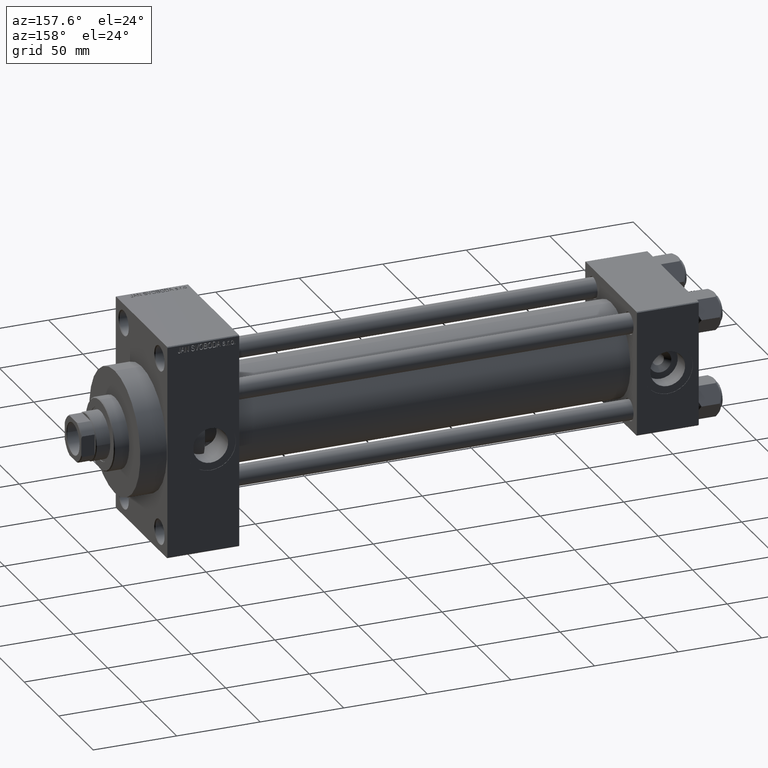
[diagram: clean part render]
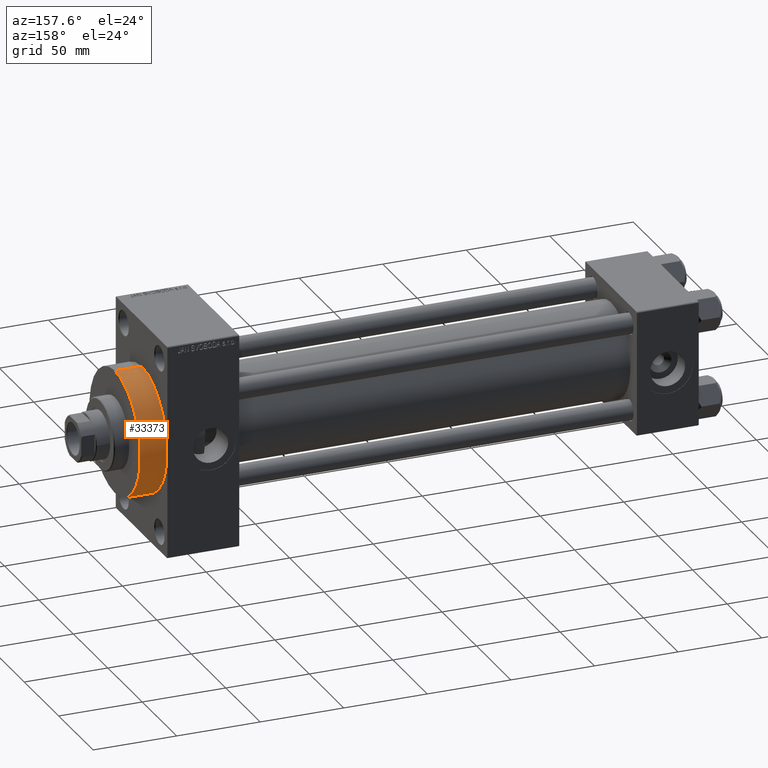
[diagram: same view with one face highlighted and labeled with its STEP entity id]
A machine part, auxiliary view. The second image highlights one B-rep face of the part: STEP entity #33373.
In plain terms, the highlighted cylindrical surface (partial cylindrical patch) has radius 37 mm, axis along (-1, -0, -0).
Its self-contained STEP definition (entity closure, byte-faithful):
#588 = CARTESIAN_POINT ( 'NONE',  ( 333.9999999999999432, 0.000000000000000000, 37.00000000000000000 ) ) ;
#1422 = DIRECTION ( 'NONE',  ( -1.000000000000000000, -0.000000000000000000, -0.000000000000000000 ) ) ;
#1637 = CARTESIAN_POINT ( 'NONE',  ( 317.9999999999999432, 0.000000000000000000, 37.00000000000000000 ) ) ;
#1901 = FACE_OUTER_BOUND ( 'NONE', #15118, .T. ) ;
#2005 = CIRCLE ( 'NONE', #19523, 37.00000000000000000 ) ;
#2626 = DIRECTION ( 'NONE',  ( 0.000000000000000000, 0.000000000000000000, -1.000000000000000000 ) ) ;
#5153 = CYLINDRICAL_SURFACE ( 'NONE', #8122, 37.00000000000000000 ) ;
#7837 = LINE ( 'NONE', #11589, #32994 ) ;
#7880 = CARTESIAN_POINT ( 'NONE',  ( 333.9999999999999432, 4.531193156845206793E-15, -37.00000000000000000 ) ) ;
#8122 = AXIS2_PLACEMENT_3D ( 'NONE', #27363, #1422, #42543 ) ;
#9508 = CARTESIAN_POINT ( 'NONE',  ( 333.9999999999999432, 0.000000000000000000, 0.000000000000000000 ) ) ;
#10436 = ORIENTED_EDGE ( 'NONE', *, *, #47423, .F. ) ;
#11320 = LINE ( 'NONE', #588, #33403 ) ;
#11589 = CARTESIAN_POINT ( 'NONE',  ( 333.9999999999999432, 4.531193156845206793E-15, -37.00000000000000000 ) ) ;
#13478 = CARTESIAN_POINT ( 'NONE',  ( 333.9999999999999432, 0.000000000000000000, 37.00000000000000000 ) ) ;
#15118 = EDGE_LOOP ( 'NONE', ( #10436, #28963, #42536, #27763 ) ) ;
#17292 = VERTEX_POINT ( 'NONE', #7880 ) ;
#19523 = AXIS2_PLACEMENT_3D ( 'NONE', #9508, #24969, #21233 ) ;
#21233 = DIRECTION ( 'NONE',  ( 0.000000000000000000, 0.000000000000000000, -1.000000000000000000 ) ) ;
#22428 = VERTEX_POINT ( 'NONE', #13478 ) ;
#24319 = EDGE_CURVE ( 'NONE', #22428, #45515, #11320, .T. ) ;
#24969 = DIRECTION ( 'NONE',  ( 1.000000000000000000, 0.000000000000000000, 0.000000000000000000 ) ) ;
#26710 = VERTEX_POINT ( 'NONE', #37282 ) ;
#27363 = CARTESIAN_POINT ( 'NONE',  ( 333.9999999999999432, 0.000000000000000000, 0.000000000000000000 ) ) ;
#27467 = AXIS2_PLACEMENT_3D ( 'NONE', #36774, #36281, #2626 ) ;
#27763 = ORIENTED_EDGE ( 'NONE', *, *, #24319, .F. ) ;
#28963 = ORIENTED_EDGE ( 'NONE', *, *, #39411, .T. ) ;
#32994 = VECTOR ( 'NONE', #34512, 1000.000000000000000 ) ;
#33373 = ADVANCED_FACE ( 'NONE', ( #1901 ), #5153, .T. ) ;
#33403 = VECTOR ( 'NONE', #45945, 1000.000000000000000 ) ;
#34512 = DIRECTION ( 'NONE',  ( -1.000000000000000000, -0.000000000000000000, -0.000000000000000000 ) ) ;
#36281 = DIRECTION ( 'NONE',  ( 1.000000000000000000, 0.000000000000000000, 0.000000000000000000 ) ) ;
#36774 = CARTESIAN_POINT ( 'NONE',  ( 317.9999999999999432, 0.000000000000000000, 0.000000000000000000 ) ) ;
#37282 = CARTESIAN_POINT ( 'NONE',  ( 317.9999999999999432, 4.531193156845206793E-15, -37.00000000000000000 ) ) ;
#39411 = EDGE_CURVE ( 'NONE', #17292, #26710, #7837, .T. ) ;
#42536 = ORIENTED_EDGE ( 'NONE', *, *, #43935, .T. ) ;
#42543 = DIRECTION ( 'NONE',  ( 0.000000000000000000, 0.000000000000000000, 1.000000000000000000 ) ) ;
#43935 = EDGE_CURVE ( 'NONE', #26710, #45515, #48928, .T. ) ;
#45515 = VERTEX_POINT ( 'NONE', #1637 ) ;
#45945 = DIRECTION ( 'NONE',  ( -1.000000000000000000, -0.000000000000000000, -0.000000000000000000 ) ) ;
#47423 = EDGE_CURVE ( 'NONE', #17292, #22428, #2005, .T. ) ;
#48928 = CIRCLE ( 'NONE', #27467, 37.00000000000000000 ) ;